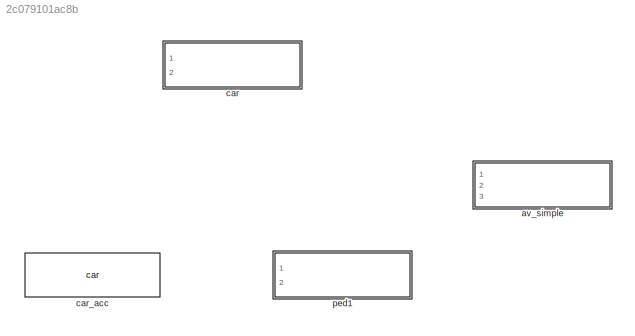
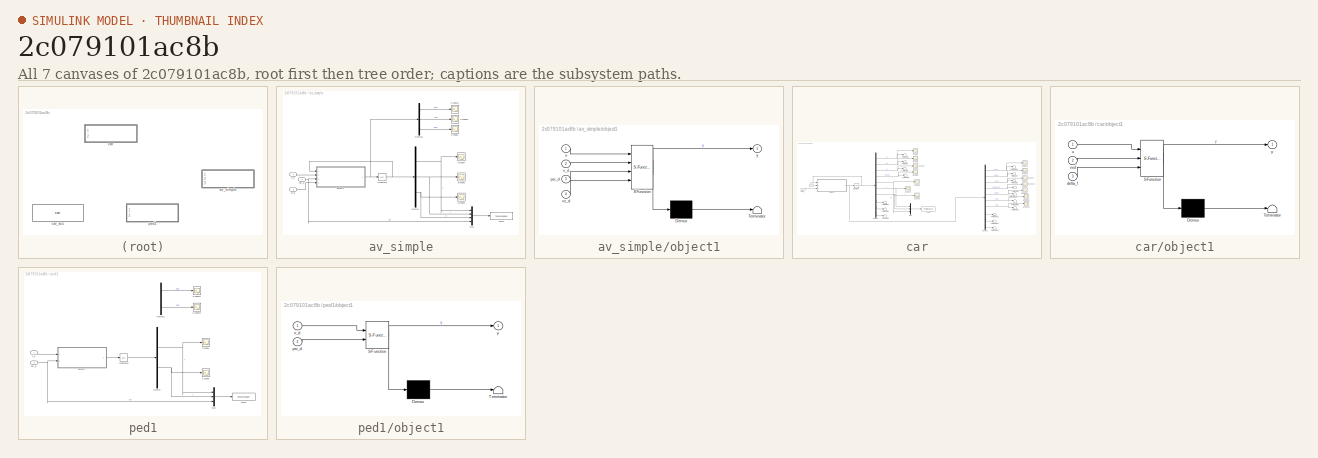
[diagram: thumbnail index - all 7 canvases of the model, root first then tree order]
MODEL slx_2c079101ac8b
KIND library
CONFIG AbsTol = auto
CONFIG EnableMultiTasking = off
CONFIG FixedStep = auto
CONFIG MaxStep = auto
CONFIG MinStep = auto
CONFIG RelTol = 1e-3
CONFIG SampleTimeConstraint = Unconstrained
CONFIG Solver = VariableStepAuto
CONFIG SolverName = VariableStepAuto
CONFIG StartTime = 0.0
CONFIG StopTime = 10.0
BLOCK [SubSystem] av_simple
  Ports = [3]
  RequestExecContextInheritance = off
BLOCK [Demux] av_simple/Demux
  DisplayOption = bar
  Outputs = 3
  Ports = [1, 3]
BLOCK [Demux] av_simple/Demux1
  DisplayOption = bar
  Outputs = 3
  Ports = [1, 3]
BLOCK [Integrator] av_simple/Integrator
  InitialCondition = obj.init
  Ports = [1, 1]
BLOCK [Mux] av_simple/Mux
  DisplayOption = bar
  Ports = [4, 1]
BLOCK [Scope] av_simple/Scope1
  Floating = off
  NumInputPorts = 1
  Ports = [1]
  ScopeSpecificationString = Simulink.scopes.TimeScopeBlockCfg('CurrentConfiguration', extmgr.ConfigurationSet(extmgr.Configuration('Core','General UI',true),extmgr.Configuration('Core','Source UI',true),extmgr.Configuration('Sources','WiredSimulink',true,'DataLoggingVariableName','ScopeData1'),extmgr.Configuration('Visuals','Time Domain',true,'SerializedDisplays',{struct('MinYLimReal','-12.50135','MaxYLimReal','12.50096','YL...<+1369ch>
BLOCK [Scope] av_simple/Scope11
  Floating = off
  NumInputPorts = 1
  Ports = [1]
  ScopeSpecificationString = Simulink.scopes.TimeScopeBlockCfg('CurrentConfiguration', extmgr.ConfigurationSet(extmgr.Configuration('Core','General UI',true),extmgr.Configuration('Core','Source UI',true),extmgr.Configuration('Sources','WiredSimulink',true,'DataLoggingVariableName','ScopeData2'),extmgr.Configuration('Visuals','Time Domain',true,'SerializedDisplays',{struct('MinYLimReal','-11.14338','MaxYLimReal','100.29045','Y...<+1370ch>  <repeated x3 — deduplicated; at blocks: Scope11>
BLOCK [Scope] av_simple/Scope13
  Floating = off
  NumInputPorts = 1
  Ports = [1]
  ScopeSpecificationString = Simulink.scopes.TimeScopeBlockCfg('CurrentConfiguration', extmgr.ConfigurationSet(extmgr.Configuration('Core','General UI',true),extmgr.Configuration('Core','Source UI',true),extmgr.Configuration('Sources','WiredSimulink',true,'DataLoggingVariableName','ScopeData4'),extmgr.Configuration('Visuals','Time Domain',true,'SerializedDisplays',{struct('MinYLimReal','-12.50135','MaxYLimReal','12.50096','YL...<+1369ch>  <repeated x3 — deduplicated; at blocks: Scope13>
BLOCK [Scope] av_simple/Scope2
  Floating = off
  NumInputPorts = 1
  Ports = [1]
  ScopeSpecificationString = Simulink.scopes.TimeScopeBlockCfg('CurrentConfiguration', extmgr.ConfigurationSet(extmgr.Configuration('Core','General UI',true),extmgr.Configuration('Core','Source UI',true),extmgr.Configuration('Sources','WiredSimulink',true,'DataLoggingVariableName','ScopeData2'),extmgr.Configuration('Visuals','Time Domain',true,'SerializedDisplays',{struct('MinYLimReal','-38.61337','MaxYLimReal','4.33051','YLa...<+1364ch>
BLOCK [Scope] av_simple/Scope4
  Floating = off
  NumInputPorts = 1
  Ports = [1]
  ScopeSpecificationString = Simulink.scopes.TimeScopeBlockCfg('CurrentConfiguration', extmgr.ConfigurationSet(extmgr.Configuration('Core','General UI',true),extmgr.Configuration('Core','Source UI',true),extmgr.Configuration('Sources','WiredSimulink',true,'DataLoggingVariableName','ScopeData5'),extmgr.Configuration('Visuals','Time Domain',true,'SerializedDisplays',{struct('MinYLimReal','-20.34242','MaxYLimReal','22.60029','YL...<+1366ch>  <repeated x3 — deduplicated; at blocks: Scope4>
BLOCK [Scope] av_simple/Scope6
  Floating = off
  NumInputPorts = 1
  Ports = [1]
  ScopeSpecificationString = Simulink.scopes.TimeScopeBlockCfg('CurrentConfiguration', extmgr.ConfigurationSet(extmgr.Configuration('Core','General UI',true),extmgr.Configuration('Core','Source UI',true),extmgr.Configuration('Sources','WiredSimulink',true,'DataLoggingVariableName','ScopeData7'),extmgr.Configuration('Visuals','Time Domain',true,'SerializedDisplays',{struct('MinYLimReal','-38.61337','MaxYLimReal','4.33051','YLa...<+1364ch>  <repeated x3 — deduplicated; at blocks: Scope6>
BLOCK [ToWorkspace] av_simple/ToWS
  FixptAsFi = on
  MaxDataPoints = inf
  Ports = [1]
  SampleTime = -1
  SaveFormat = Timeseries
  VariableName = av1
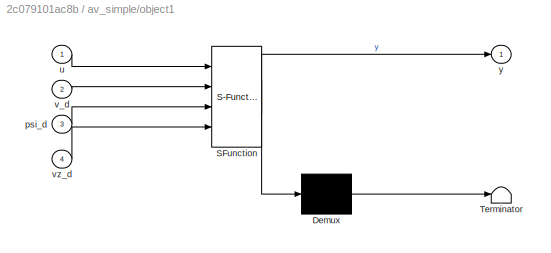
BLOCK [SubSystem] av_simple/object1
  ErrorFcn = Stateflow.Translate.translate
  PermitHierarchicalResolution = ExplicitOnly
  Ports = [4, 1]
  RequestExecContextInheritance = off
  SFBlockType = MATLAB Function
  TreatAsAtomicUnit = on
BLOCK [Demux] av_simple/object1/ Demux 
  Outputs = 1
  Ports = [1, 1]
BLOCK [S-Function] av_simple/object1/ SFunction 
  EnableBusSupport = off
  FunctionName = sf_sfun
  Parameters = obj
  PortCounts = [4 2]
  Ports = [4, 2]
  SFcnIsStateOwnerBlock = off
  SFunctionDeploymentMode = off
  Tag = Stateflow S-Function 3
BLOCK [Terminator] av_simple/object1/ Terminator 
BLOCK [Inport] av_simple/object1/psi_d
  IconDisplay = Port number
  Port = 3
BLOCK [Inport] av_simple/object1/u
  IconDisplay = Port number
BLOCK [Inport] av_simple/object1/v_d
  IconDisplay = Port number
  Port = 2
BLOCK [Inport] av_simple/object1/vz_d
  IconDisplay = Port number
  Port = 4
BLOCK [Outport] av_simple/object1/y
  IconDisplay = Port number
BLOCK [Inport] av_simple/psi_d
  IconDisplay = Port number
  Port = 2
BLOCK [Inport] av_simple/v_d
  IconDisplay = Port number
BLOCK [Inport] av_simple/vz_d
  IconDisplay = Port number
  Port = 3
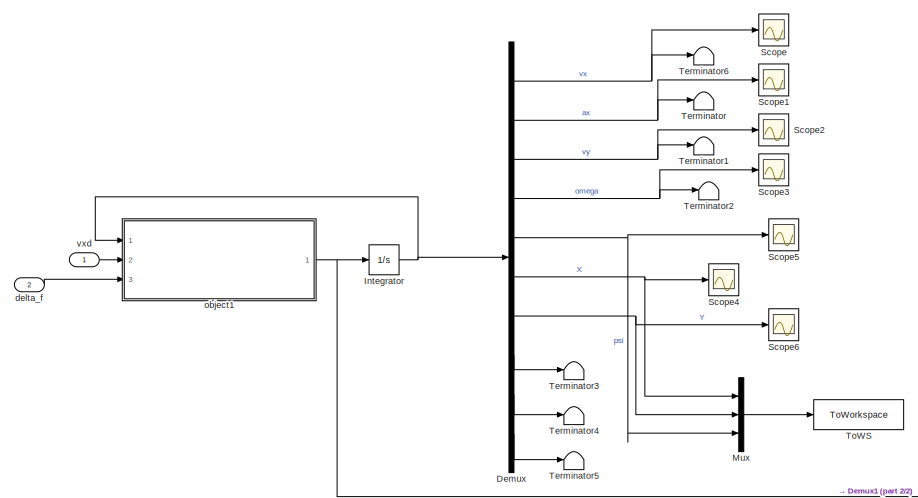
[diagram: car - part 1/2, left side, full height]
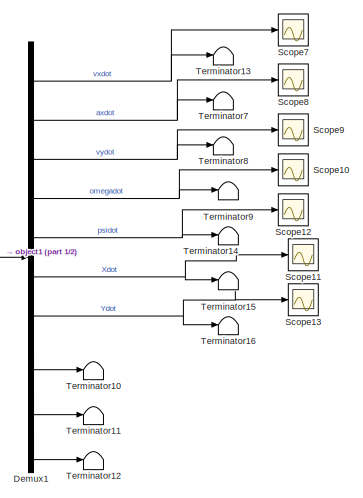
[diagram: car - part 2/2, right side, full height]
BLOCK [SubSystem] car
  Ports = [2]
  RequestExecContextInheritance = off
BLOCK [Demux] car/Demux
  DisplayOption = bar
  Outputs = 10
  Ports = [1, 10]
BLOCK [Demux] car/Demux1
  DisplayOption = bar
  Outputs = 10
  Ports = [1, 10]
BLOCK [Integrator] car/Integrator
  InitialCondition = obj.init
  Ports = [1, 1]
BLOCK [Mux] car/Mux
  DisplayOption = bar
  Inputs = 3
  Ports = [3, 1]
BLOCK [Scope] car/Scope
  Floating = off
  NumInputPorts = 1
  Ports = [1]
  ScopeSpecificationString = Simulink.scopes.TimeScopeBlockCfg('CurrentConfiguration', extmgr.ConfigurationSet(extmgr.Configuration('Core','General UI',true),extmgr.Configuration('Core','Source UI',true),extmgr.Configuration('Sources','WiredSimulink',true,'DataLoggingVariableName','ScopeData1'),extmgr.Configuration('Visuals','Time Domain',true,'SerializedDisplays',{struct('MinYLimReal','-1.30429','MaxYLimReal','11.73858','YLa...<+1365ch>
BLOCK [Scope] car/Scope1
  Floating = off
  NumInputPorts = 1
  Ports = [1]
  ScopeSpecificationString = Simulink.scopes.TimeScopeBlockCfg('CurrentConfiguration', extmgr.ConfigurationSet(extmgr.Configuration('Core','General UI',true),extmgr.Configuration('Core','Source UI',true),extmgr.Configuration('Sources','WiredSimulink',true,'DataLoggingVariableName','ScopeData2'),extmgr.Configuration('Visuals','Time Domain',true,'SerializedDisplays',{struct('MinYLimReal','-7.94136','MaxYLimReal','51.56418','YLa...<+1365ch>
BLOCK [Scope] car/Scope10
  Floating = off
  NumInputPorts = 1
  Ports = [1]
  ScopeSpecificationString = Simulink.scopes.TimeScopeBlockCfg('CurrentConfiguration', extmgr.ConfigurationSet(extmgr.Configuration('Core','General UI',true),extmgr.Configuration('Core','Source UI',true),extmgr.Configuration('Sources','WiredSimulink',true,'DataLoggingVariableName','ScopeData1'),extmgr.Configuration('Visuals','Time Domain',true,'SerializedDisplays',{struct('MinYLimReal','-0.26788','MaxYLimReal','2.20907','YLab...<+1367ch>
BLOCK [Scope] car/Scope11
  Floating = off
  NumInputPorts = 1
  Ports = [1]
BLOCK [Scope] car/Scope12
  Floating = off
  NumInputPorts = 1
  Ports = [1]
  ScopeSpecificationString = Simulink.scopes.TimeScopeBlockCfg('CurrentConfiguration', extmgr.ConfigurationSet(extmgr.Configuration('Core','General UI',true),extmgr.Configuration('Core','Source UI',true),extmgr.Configuration('Sources','WiredSimulink',true,'DataLoggingVariableName','ScopeData3'),extmgr.Configuration('Visuals','Time Domain',true,'SerializedDisplays',{struct('MinYLimReal','-0.02362','MaxYLimReal','0.21262','YLab...<+1365ch>
BLOCK [Scope] car/Scope13
  Floating = off
  NumInputPorts = 1
  Ports = [1]
BLOCK [Scope] car/Scope2
  Floating = off
  NumInputPorts = 1
  Ports = [1]
  ScopeSpecificationString = Simulink.scopes.TimeScopeBlockCfg('CurrentConfiguration', extmgr.ConfigurationSet(extmgr.Configuration('Core','General UI',true),extmgr.Configuration('Core','Source UI',true),extmgr.Configuration('Sources','WiredSimulink',true,'DataLoggingVariableName','ScopeData3'),extmgr.Configuration('Visuals','Time Domain',true,'SerializedDisplays',{struct('MinYLimReal','-0.02095','MaxYLimReal','0.18855','YLab...<+1390ch>
BLOCK [Scope] car/Scope3
  Floating = off
  NumInputPorts = 1
  Ports = [1]
  ScopeSpecificationString = Simulink.scopes.TimeScopeBlockCfg('CurrentConfiguration', extmgr.ConfigurationSet(extmgr.Configuration('Core','General UI',true),extmgr.Configuration('Core','Source UI',true),extmgr.Configuration('Sources','WiredSimulink',true,'DataLoggingVariableName','ScopeData4'),extmgr.Configuration('Visuals','Time Domain',true,'SerializedDisplays',{struct('MinYLimReal','-0.02362','MaxYLimReal','0.21262','YLab...<+1364ch>
BLOCK [Scope] car/Scope4
  Floating = off
  NumInputPorts = 1
  Ports = [1]
BLOCK [Scope] car/Scope5
  Floating = off
  NumInputPorts = 1
  Ports = [1]
  ScopeSpecificationString = Simulink.scopes.TimeScopeBlockCfg('CurrentConfiguration', extmgr.ConfigurationSet(extmgr.Configuration('Core','General UI',true),extmgr.Configuration('Core','Source UI',true),extmgr.Configuration('Sources','WiredSimulink',true,'DataLoggingVariableName','ScopeData6'),extmgr.Configuration('Visuals','Time Domain',true,'SerializedDisplays',{struct('MinYLimReal','-0.08776','MaxYLimReal','0.78983','YLab...<+1362ch>
BLOCK [Scope] car/Scope6
  Floating = off
  NumInputPorts = 1
  Ports = [1]
BLOCK [Scope] car/Scope7
  Floating = off
  NumInputPorts = 1
  Ports = [1]
  ScopeSpecificationString = Simulink.scopes.TimeScopeBlockCfg('CurrentConfiguration', extmgr.ConfigurationSet(extmgr.Configuration('Core','General UI',true),extmgr.Configuration('Core','Source UI',true),extmgr.Configuration('Sources','WiredSimulink',true,'DataLoggingVariableName','ScopeData5'),extmgr.Configuration('Visuals','Time Domain',true,'SerializedDisplays',{struct('MinYLimReal','-7.98679','MaxYLimReal','51.5673','YLab...<+1364ch>
BLOCK [Scope] car/Scope8
  Floating = off
  NumInputPorts = 1
  Ports = [1]
  ScopeSpecificationString = Simulink.scopes.TimeScopeBlockCfg('CurrentConfiguration', extmgr.ConfigurationSet(extmgr.Configuration('Core','General UI',true),extmgr.Configuration('Core','Source UI',true),extmgr.Configuration('Sources','WiredSimulink',true,'DataLoggingVariableName','ScopeData6'),extmgr.Configuration('Visuals','Time Domain',true,'SerializedDisplays',{struct('MinYLimReal','-359.43212','MaxYLimReal','1151.04801',...<+1382ch>
BLOCK [Scope] car/Scope9
  Floating = off
  NumInputPorts = 1
  Ports = [1]
  ScopeSpecificationString = Simulink.scopes.TimeScopeBlockCfg('CurrentConfiguration', extmgr.ConfigurationSet(extmgr.Configuration('Core','General UI',true),extmgr.Configuration('Core','Source UI',true),extmgr.Configuration('Sources','WiredSimulink',true,'DataLoggingVariableName','ScopeData7'),extmgr.Configuration('Visuals','Time Domain',true,'SerializedDisplays',{struct('MinYLimReal','-1.62163','MaxYLimReal','7.93421','YLab...<+1364ch>
BLOCK [Terminator] car/Terminator
BLOCK [Terminator] car/Terminator1
BLOCK [Terminator] car/Terminator10
BLOCK [Terminator] car/Terminator11
BLOCK [Terminator] car/Terminator12
BLOCK [Terminator] car/Terminator13
BLOCK [Terminator] car/Terminator14
BLOCK [Terminator] car/Terminator15
BLOCK [Terminator] car/Terminator16
BLOCK [Terminator] car/Terminator2
BLOCK [Terminator] car/Terminator3
BLOCK [Terminator] car/Terminator4
BLOCK [Terminator] car/Terminator5
BLOCK [Terminator] car/Terminator6
BLOCK [Terminator] car/Terminator7
BLOCK [Terminator] car/Terminator8
BLOCK [Terminator] car/Terminator9
BLOCK [ToWorkspace] car/ToWS
  FixptAsFi = on
  MaxDataPoints = inf
  Ports = [1]
  SampleTime = -1
  SaveFormat = Timeseries
  VariableName = Car1
BLOCK [Inport] car/delta_f
  IconDisplay = Port number
  Port = 2
BLOCK [SubSystem] car/object1
  ErrorFcn = Stateflow.Translate.translate
  PermitHierarchicalResolution = ExplicitOnly
  Ports = [3, 1]
  RequestExecContextInheritance = off
  SFBlockType = MATLAB Function
  TreatAsAtomicUnit = on
BLOCK [Demux] car/object1/ Demux 
  Outputs = 1
  Ports = [1, 1]
BLOCK [S-Function] car/object1/ SFunction 
  EnableBusSupport = on
  FunctionName = sf_sfun
  Parameters = obj
  PortCounts = [3 2]
  Ports = [3, 2]
  SFcnIsStateOwnerBlock = off
  SFunctionDeploymentMode = off
  Tag = Stateflow S-Function 2
BLOCK [Terminator] car/object1/ Terminator 
BLOCK [Inport] car/object1/delta_f
  IconDisplay = Port number
  Port = 3
BLOCK [Inport] car/object1/u
  IconDisplay = Port number
BLOCK [Inport] car/object1/vxd
  IconDisplay = Port number
  Port = 2
BLOCK [Outport] car/object1/y
  IconDisplay = Port number
BLOCK [Inport] car/vxd 
  IconDisplay = Port number
BLOCK [Reference] car_acc  REF=$bdroot/car
  Ports = [2]
  SourceBlock = $bdroot/car
BLOCK [SubSystem] ped1
  Ports = [2]
  RequestExecContextInheritance = off
BLOCK [Demux] ped1/Demux
  DisplayOption = bar
  Outputs = 2
  Ports = [1, 2]
BLOCK [Demux] ped1/Demux1
  DisplayOption = bar
  Outputs = 2
  Ports = [1, 2]
BLOCK [Integrator] ped1/Integrator
  InitialCondition = obj.init
  Ports = [1, 1]
BLOCK [Mux] ped1/Mux
  DisplayOption = bar
  Inputs = 3
  Ports = [3, 1]
BLOCK [Scope] ped1/Scope11
  Floating = off
  NumInputPorts = 1
  Ports = [1]
BLOCK [Scope] ped1/Scope13
  Floating = off
  NumInputPorts = 1
  Ports = [1]
BLOCK [Scope] ped1/Scope4
  Floating = off
  NumInputPorts = 1
  Ports = [1]
BLOCK [Scope] ped1/Scope6
  Floating = off
  NumInputPorts = 1
  Ports = [1]
BLOCK [ToWorkspace] ped1/ToWS
  FixptAsFi = on
  MaxDataPoints = inf
  Ports = [1]
  SampleTime = -1
  SaveFormat = Timeseries
  VariableName = Ped1
BLOCK [SubSystem] ped1/object1
  ErrorFcn = Stateflow.Translate.translate
  PermitHierarchicalResolution = ExplicitOnly
  Ports = [2, 1]
  RequestExecContextInheritance = off
  SFBlockType = MATLAB Function
  TreatAsAtomicUnit = on
BLOCK [Demux] ped1/object1/ Demux 
  Outputs = 1
  Ports = [1, 1]
BLOCK [S-Function] ped1/object1/ SFunction 
  EnableBusSupport = off
  FunctionName = sf_sfun
  Parameters = obj
  PortCounts = [2 2]
  Ports = [2, 2]
  SFcnIsStateOwnerBlock = off
  SFunctionDeploymentMode = off
  Tag = Stateflow S-Function 1
BLOCK [Terminator] ped1/object1/ Terminator 
BLOCK [Inport] ped1/object1/psi_d
  IconDisplay = Port number
  Port = 2
BLOCK [Inport] ped1/object1/v_d
  IconDisplay = Port number
BLOCK [Outport] ped1/object1/y
  IconDisplay = Port number
BLOCK [Inport] ped1/psi_d
  IconDisplay = Port number
  Port = 2
BLOCK [Inport] ped1/v_d
  IconDisplay = Port number
LINE av_simple/Demux1:1 -> av_simple/Scope11:1
LINE av_simple/Demux1:2 -> av_simple/Scope13:1
LINE av_simple/Demux1:3 -> av_simple/Scope1:1
NET av_simple/Demux:1 -> av_simple/Mux:1, av_simple/Scope4:1
NET av_simple/Demux:2 -> av_simple/Mux:2, av_simple/Scope6:1
NET av_simple/Demux:3 -> av_simple/Mux:3, av_simple/Scope2:1
NET av_simple/Integrator:1 -> av_simple/Demux:1, av_simple/object1:1
LINE av_simple/Mux:1 -> av_simple/ToWS:1
NET av_simple/object1:1 -> av_simple/Demux1:1, av_simple/Integrator:1
NET av_simple/psi_d:1 -> av_simple/Mux:4, av_simple/object1:3
LINE av_simple/v_d:1 -> av_simple/object1:2
LINE av_simple/vz_d:1 -> av_simple/object1:4
NET car/Demux1:1 -> car/Scope7:1, car/Terminator13:1
LINE car/Demux1:10 -> car/Terminator12:1
NET car/Demux1:2 -> car/Scope8:1, car/Terminator7:1
NET car/Demux1:3 -> car/Scope9:1, car/Terminator8:1
NET car/Demux1:4 -> car/Scope10:1, car/Terminator9:1
NET car/Demux1:5 -> car/Scope12:1, car/Terminator14:1
NET car/Demux1:6 -> car/Scope11:1, car/Terminator15:1
NET car/Demux1:7 -> car/Scope13:1, car/Terminator16:1
LINE car/Demux1:8 -> car/Terminator10:1
LINE car/Demux1:9 -> car/Terminator11:1
NET car/Demux:1 -> car/Scope:1, car/Terminator6:1
LINE car/Demux:10 -> car/Terminator5:1
NET car/Demux:2 -> car/Scope1:1, car/Terminator:1
NET car/Demux:3 -> car/Scope2:1, car/Terminator1:1
NET car/Demux:4 -> car/Scope3:1, car/Terminator2:1
NET car/Demux:5 -> car/Mux:3, car/Scope5:1
NET car/Demux:6 -> car/Mux:1, car/Scope4:1
NET car/Demux:7 -> car/Mux:2, car/Scope6:1
LINE car/Demux:8 -> car/Terminator3:1
LINE car/Demux:9 -> car/Terminator4:1
NET car/Integrator:1 -> car/Demux:1, car/object1:1
LINE car/Mux:1 -> car/ToWS:1
LINE car/delta_f:1 -> car/object1:3
NET car/object1:1 -> car/Demux1:1, car/Integrator:1
LINE car/vxd :1 -> car/object1:2
LINE ped1/Demux1:1 -> ped1/Scope11:1
LINE ped1/Demux1:2 -> ped1/Scope13:1
NET ped1/Demux:1 -> ped1/Mux:1, ped1/Scope4:1
NET ped1/Demux:2 -> ped1/Mux:2, ped1/Scope6:1
LINE ped1/Integrator:1 -> ped1/Demux:1
LINE ped1/Mux:1 -> ped1/ToWS:1
LINE ped1/object1:1 -> ped1/Integrator:1
NET ped1/psi_d:1 -> ped1/Mux:3, ped1/object1:2
LINE ped1/v_d:1 -> ped1/object1:1
note: NET lines group one-source signal fan-out (src -> all destinations, sorted); 1:1 wires keep LINE
CHART ped1/object1 states=1 transitions=1
  STATE_LABEL 'eML_blk_kernel()'
  STATE_LABEL "SCRIPT:\nfunction y = pedObject(v_d, psi_d, obj)\n\nXdot = v_d * cos(psi_d);\nYdot = v_d * sin(psi_d);\ny = [Xdot, Ydot]';\nend\n\nfunction y = TF(psi)\ny = [cos(psi), sin(psi); -sin(psi), cos(psi)];\nend"
CHART car/object1 states=1 transitions=1
  STATE_LABEL 'eML_blk_kernel()'
  STATE_LABEL 'SCRIPT:\nfunction y = fcn(u,vxd, delta_f, obj)\n\nvx = u(1);\nax = u(2);\nvy = u(3);\nomega = u(4);\npsi = u(5);\nX = u(6);\nY = u(7);\n\nif abs(vx)> obj.vx_threshold1\n    alpha_f = delta_f * pi/180 - (vy + omega * obj.lf) / vx;\n    alpha_r = - (vy - omega * obj.lr) / vx;\nelse\n    alpha_f = 0;\n    alpha_r = 0;\nend\n\nFx = obj.m * ax;\nFyf = min(obj.Fyfmax,obj.Calpha_f * alpha_f);\nFyr = min(obj.Fyrmax, obj.Calph...<+470ch>'
CHART av_simple/object1 states=1 transitions=1
  STATE_LABEL 'eML_blk_kernel()'
  STATE_LABEL "SCRIPT:\nfunction y = fcn(u, v_d, psi_d, vz_d, obj)\n\nZ = u(3);\nXdot = v_d * cos(psi_d);\nYdot = v_d * sin(psi_d);\nif Z <= 0 && vz_d < 0\n   Zdot = 0;\nelse\n   Zdot = vz_d;\nend\ny = [Xdot, Ydot, Zdot]';\nend\n\nfunction y = TF(psi)\ny = [cos(psi), sin(psi); -sin(psi), cos(psi)];\nend"
